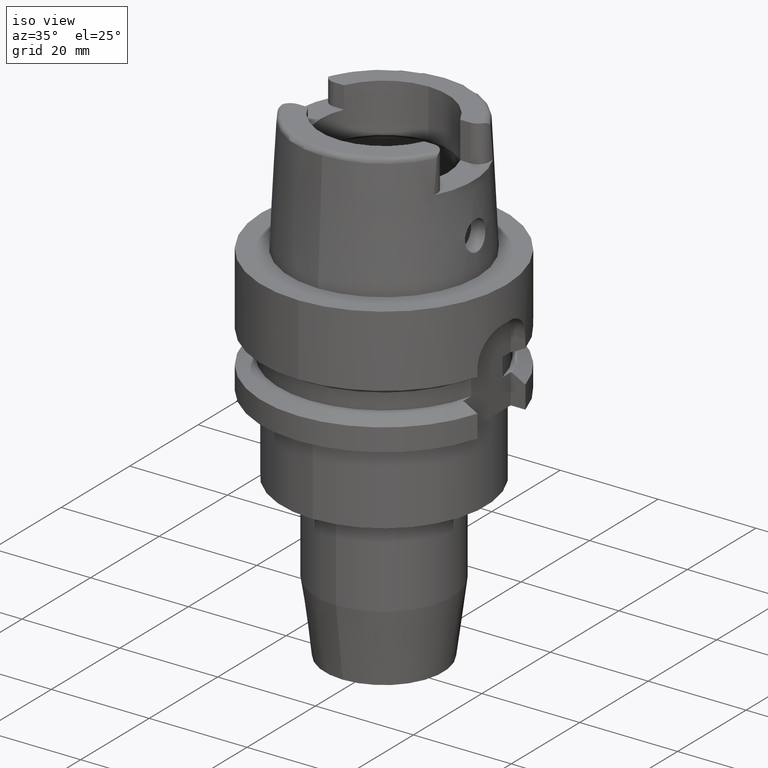
[diagram: clean part render]
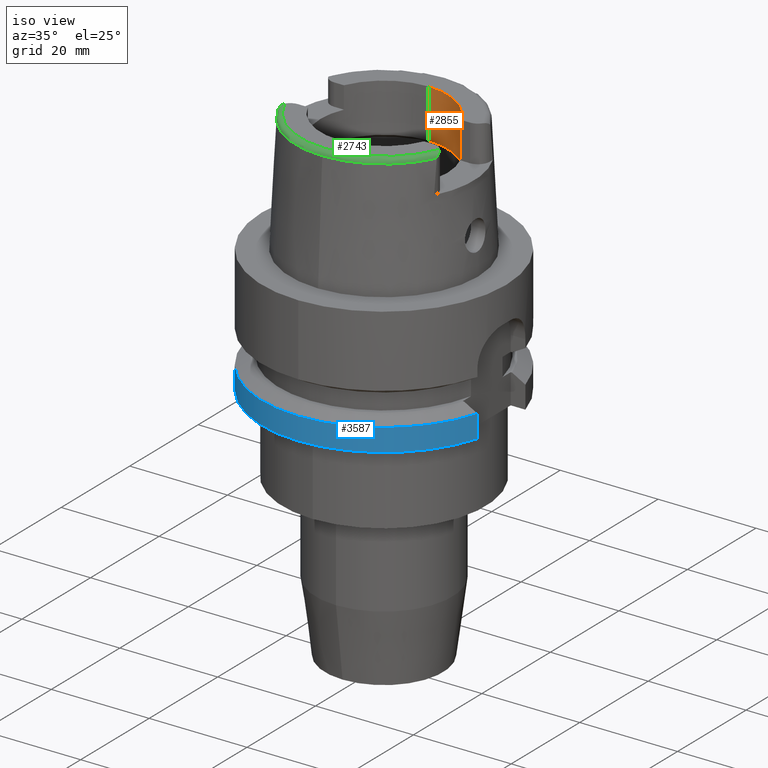
[diagram: same view with three faces highlighted in distinct colors, each labeled with its STEP entity id]
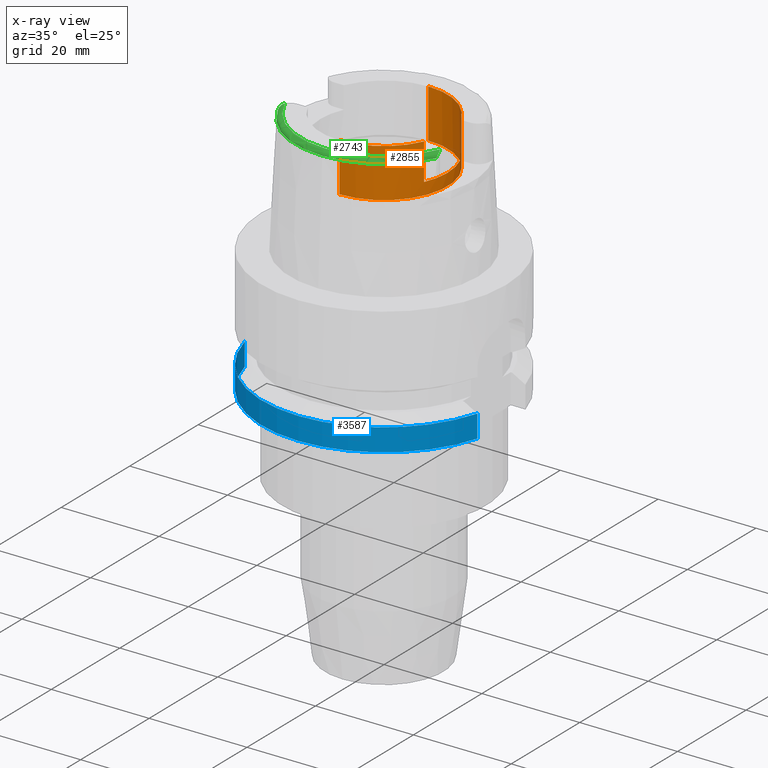
[diagram: x-ray of the same camera — body ghosted, the three highlighted faces saturated]
A machine part, iso view with three faces highlighted in distinct colors.
The next image is the same camera in x-ray (body ghosted, the three faces saturated) — at least one of them is partly hidden behind the body in this view.
Their STEP definitions:

[orange] entity #2855 — the highlighted cylindrical surface (partial cylindrical patch) has radius 13 mm, axis along (0, 0, 1).
#42=CARTESIAN_POINT('',(0.E0,0.E0,2.5E1));
#43=DIRECTION('',(0.E0,0.E0,1.E0));
#44=DIRECTION('',(9.141462211318E-1,4.053846153846E-1,0.E0));
#45=AXIS2_PLACEMENT_3D('',#42,#43,#44);
#72=DIRECTION('',(0.E0,9.659541928455E-14,1.E0));
#73=VECTOR('',#72,1.000397459622E1);
#74=CARTESIAN_POINT('',(0.E0,-1.3E1,1.499602540378E1));
#75=LINE('',#74,#73);
#169=CARTESIAN_POINT('',(0.E0,0.E0,2.5E1));
#170=DIRECTION('',(0.E0,0.E0,1.E0));
#171=DIRECTION('',(0.E0,-1.E0,0.E0));
#172=AXIS2_PLACEMENT_3D('',#169,#170,#171);
#409=CARTESIAN_POINT('',(0.E0,0.E0,1.75E1));
#410=DIRECTION('',(0.E0,0.E0,1.E0));
#411=DIRECTION('',(9.141462211318E-1,-4.053846153846E-1,0.E0));
#412=AXIS2_PLACEMENT_3D('',#409,#410,#411);
#469=DIRECTION('',(0.E0,0.E0,1.E0));
#470=VECTOR('',#469,7.5E0);
#471=CARTESIAN_POINT('',(1.188390087471E1,-5.27E0,1.75E1));
#472=LINE('',#471,#470);
#476=DIRECTION('',(0.E0,-9.659541928455E-14,1.E0));
#477=VECTOR('',#476,1.000397459622E1);
#478=CARTESIAN_POINT('',(0.E0,1.3E1,1.499602540378E1));
#479=LINE('',#478,#477);
#483=DIRECTION('',(0.E0,0.E0,-1.E0));
#484=VECTOR('',#483,7.5E0);
#485=CARTESIAN_POINT('',(1.188390087471E1,5.27E0,2.5E1));
#486=LINE('',#485,#484);
#518=CARTESIAN_POINT('',(0.E0,0.E0,1.499602540378E1));
#519=DIRECTION('',(0.E0,0.E0,-1.E0));
#520=DIRECTION('',(0.E0,1.E0,0.E0));
#521=AXIS2_PLACEMENT_3D('',#518,#519,#520);
#2268=CARTESIAN_POINT('',(1.188390087471E1,5.27E0,2.5E1));
#2269=VERTEX_POINT('',#2268);
#2270=CARTESIAN_POINT('',(0.E0,1.3E1,2.5E1));
#2271=VERTEX_POINT('',#2270);
#2278=CARTESIAN_POINT('',(0.E0,-1.3E1,2.5E1));
#2279=VERTEX_POINT('',#2278);
#2280=CARTESIAN_POINT('',(1.188390087471E1,-5.27E0,2.5E1));
#2281=VERTEX_POINT('',#2280);
#2292=CARTESIAN_POINT('',(0.E0,1.3E1,1.499602540378E1));
#2293=VERTEX_POINT('',#2292);
#2294=CARTESIAN_POINT('',(0.E0,-1.3E1,1.499602540378E1));
#2295=VERTEX_POINT('',#2294);
#2335=CARTESIAN_POINT('',(1.188390087471E1,-5.27E0,1.75E1));
#2336=CARTESIAN_POINT('',(1.188390087471E1,5.27E0,1.75E1));
#2337=VERTEX_POINT('',#2335);
#2338=VERTEX_POINT('',#2336);
#2837=CARTESIAN_POINT('',(0.E0,0.E0,-8.E1));
#2838=DIRECTION('',(0.E0,0.E0,1.E0));
#2839=DIRECTION('',(0.E0,1.E0,0.E0));
#2840=AXIS2_PLACEMENT_3D('',#2837,#2838,#2839);
#2841=CYLINDRICAL_SURFACE('',#2840,1.3E1);
#2842=ORIENTED_EDGE('',*,*,#2819,.F.);
#2844=ORIENTED_EDGE('',*,*,#2843,.T.);
#2845=ORIENTED_EDGE('',*,*,#2696,.F.);
#2846=ORIENTED_EDGE('',*,*,#2642,.F.);
#2848=ORIENTED_EDGE('',*,*,#2847,.F.);
#2849=ORIENTED_EDGE('',*,*,#2638,.T.);
#2850=ORIENTED_EDGE('',*,*,#2607,.F.);
#2852=ORIENTED_EDGE('',*,*,#2851,.T.);
#2853=EDGE_LOOP('',(#2842,#2844,#2845,#2846,#2848,#2849,#2850,#2852));
#2854=FACE_OUTER_BOUND('',#2853,.F.);
#46=CIRCLE('',#45,1.3E1);
#173=CIRCLE('',#172,1.3E1);
#413=CIRCLE('',#412,1.3E1);
#522=CIRCLE('',#521,1.3E1);
#2607=EDGE_CURVE('',#2269,#2271,#46,.T.);
#2638=EDGE_CURVE('',#2293,#2271,#479,.T.);
#2642=EDGE_CURVE('',#2295,#2279,#75,.T.);
#2696=EDGE_CURVE('',#2279,#2281,#173,.T.);
#2819=EDGE_CURVE('',#2337,#2338,#413,.T.);
#2843=EDGE_CURVE('',#2337,#2281,#472,.T.);
#2847=EDGE_CURVE('',#2293,#2295,#522,.T.);
#2851=EDGE_CURVE('',#2269,#2338,#486,.T.);
#2855=ADVANCED_FACE('',(#2854),#2841,.F.);

[blue] entity #3587 — the highlighted cylindrical surface (partial cylindrical patch) has radius 25 mm, axis along (0, 0, 1).
#1180=CARTESIAN_POINT('',(0.E0,0.E0,-2.6E1));
#1181=DIRECTION('',(0.E0,0.E0,1.E0));
#1182=DIRECTION('',(-9.707728879609E-1,-2.4E-1,0.E0));
#1183=AXIS2_PLACEMENT_3D('',#1180,#1181,#1182);
#1188=CARTESIAN_POINT('',(0.E0,0.E0,-2.6E1));
#1189=DIRECTION('',(0.E0,0.E0,1.E0));
#1190=DIRECTION('',(0.E0,-1.E0,0.E0));
#1191=AXIS2_PLACEMENT_3D('',#1188,#1189,#1190);
#1362=DIRECTION('',(3.543665095546E-8,-1.433375642946E-7,1.E0));
#1363=VECTOR('',#1362,4.622494561418E0);
#1364=CARTESIAN_POINT('',(-2.426932219902E1,-6.E0,-2.6E1));
#1365=LINE('',#1364,#1363);
#1369=DIRECTION('',(-1.378023080322E-8,-4.724620309667E-8,-1.E0));
#1370=VECTOR('',#1369,4.622502721852E0);
#1371=CARTESIAN_POINT('',(2.400000006370E1,-6.999999781604E0,
-2.137749727815E1));
#1372=LINE('',#1371,#1370);
#2117=CARTESIAN_POINT('',(0.E0,0.E0,-2.137749907476E1));
#2118=DIRECTION('',(0.E0,0.E0,-1.E0));
#2119=DIRECTION('',(9.6E-1,-2.8E-1,0.E0));
#2120=AXIS2_PLACEMENT_3D('',#2117,#2118,#2119);
#2125=CARTESIAN_POINT('',(0.E0,0.E0,-2.137749907476E1));
#2126=DIRECTION('',(0.E0,0.E0,-1.E0));
#2127=DIRECTION('',(0.E0,-1.E0,0.E0));
#2128=AXIS2_PLACEMENT_3D('',#2125,#2126,#2127);
#2445=CARTESIAN_POINT('',(-2.426932219902E1,-6.E0,-2.6E1));
#2446=VERTEX_POINT('',#2445);
#2447=CARTESIAN_POINT('',(0.E0,-2.5E1,-2.6E1));
#2448=CARTESIAN_POINT('',(2.4E1,-7.E0,-2.6E1));
#2449=VERTEX_POINT('',#2447);
#2450=VERTEX_POINT('',#2448);
#2473=CARTESIAN_POINT('',(-2.426932203522E1,-6.000000662577E0,
-2.137750543858E1));
#2474=VERTEX_POINT('',#2473);
#2475=CARTESIAN_POINT('',(2.4E1,-7.E0,-2.137749907476E1));
#2476=CARTESIAN_POINT('',(0.E0,-2.5E1,-2.137749907476E1));
#2477=VERTEX_POINT('',#2475);
#2478=VERTEX_POINT('',#2476);
#3571=CARTESIAN_POINT('',(0.E0,0.E0,-8.E1));
#3572=DIRECTION('',(0.E0,0.E0,1.E0));
#3573=DIRECTION('',(0.E0,1.E0,0.E0));
#3574=AXIS2_PLACEMENT_3D('',#3571,#3572,#3573);
#3575=CYLINDRICAL_SURFACE('',#3574,2.5E1);
#3577=ORIENTED_EDGE('',*,*,#3576,.T.);
#3579=ORIENTED_EDGE('',*,*,#3578,.F.);
#3581=ORIENTED_EDGE('',*,*,#3580,.F.);
#3582=ORIENTED_EDGE('',*,*,#3561,.T.);
#3583=ORIENTED_EDGE('',*,*,#3452,.F.);
#3584=ORIENTED_EDGE('',*,*,#3450,.F.);
#3585=EDGE_LOOP('',(#3577,#3579,#3581,#3582,#3583,#3584));
#3586=FACE_OUTER_BOUND('',#3585,.F.);
#1184=CIRCLE('',#1183,2.5E1);
#1192=CIRCLE('',#1191,2.5E1);
#2121=CIRCLE('',#2120,2.5E1);
#2129=CIRCLE('',#2128,2.5E1);
#3450=EDGE_CURVE('',#2446,#2449,#1184,.T.);
#3452=EDGE_CURVE('',#2449,#2450,#1192,.T.);
#3561=EDGE_CURVE('',#2477,#2450,#1372,.T.);
#3576=EDGE_CURVE('',#2446,#2474,#1365,.T.);
#3578=EDGE_CURVE('',#2478,#2474,#2129,.T.);
#3580=EDGE_CURVE('',#2477,#2478,#2121,.T.);
#3587=ADVANCED_FACE('',(#3586),#3575,.T.);

[green] entity #2743 — the highlighted toroidal blend (fillet) surface has major radius 17.0488 mm and minor (blend) radius 1 mm.
#185=CARTESIAN_POINT('',(0.E0,0.E0,2.5E1));
#186=DIRECTION('',(0.E0,0.E0,-1.E0));
#187=DIRECTION('',(9.291773910544E-1,-3.696341109170E-1,0.E0));
#188=AXIS2_PLACEMENT_3D('',#185,#186,#187);
#207=CARTESIAN_POINT('',(-1.625999847872E1,-7.831027616017E0,2.404990902230E1));
#208=CARTESIAN_POINT('',(-1.625999847872E1,-7.826521482901E0,2.408901434036E1));
#209=CARTESIAN_POINT('',(-1.626000070993E1,-7.807185720143E0,2.416627508130E1));
#210=CARTESIAN_POINT('',(-1.625999979716E1,-7.745963551391E0,2.428141614822E1));
#211=CARTESIAN_POINT('',(-1.626E1,-7.685384977806E0,2.435408732054E1));
#212=CARTESIAN_POINT('',(-1.626E1,-7.65E0,2.438968791395E1));
#217=CARTESIAN_POINT('',(-1.626E1,-7.65E0,2.438968791395E1));
#218=CARTESIAN_POINT('',(-1.626E1,-7.607179558467E0,2.443276927851E1));
#219=CARTESIAN_POINT('',(-1.625785323455E1,-7.509212896760E0,2.451921954906E1));
#220=CARTESIAN_POINT('',(-1.623983813065E1,-7.318364273252E0,2.465314564860E1));
#221=CARTESIAN_POINT('',(-1.620000666137E1,-7.102975266653E0,2.477536701074E1));
#222=CARTESIAN_POINT('',(-1.613597696150E1,-6.879752532173E0,2.487652679232E1));
#223=CARTESIAN_POINT('',(-1.604974734456E1,-6.662893441400E0,2.495000312429E1));
#224=CARTESIAN_POINT('',(-1.594717886127E1,-6.464216049628E0,2.499212639956E1));
#225=CARTESIAN_POINT('',(-1.587660667514E1,-6.353141058343E0,2.5E1));
#226=CARTESIAN_POINT('',(-1.584131538933E1,-6.301800480794E0,2.5E1));
#231=CARTESIAN_POINT('',(1.584131538933E1,-6.301800480793E0,2.5E1));
#232=CARTESIAN_POINT('',(1.587659315398E1,-6.353121388221E0,2.5E1));
#233=CARTESIAN_POINT('',(1.594714908991E1,-6.464165579630E0,2.499213287235E1));
#234=CARTESIAN_POINT('',(1.604972286594E1,-6.662838809064E0,2.495001879382E1));
#235=CARTESIAN_POINT('',(1.613596350154E1,-6.879710725586E0,2.487654420546E1));
#236=CARTESIAN_POINT('',(1.620000522727E1,-7.102963606274E0,2.477537433383E1));
#237=CARTESIAN_POINT('',(1.623984380490E1,-7.318395608769E0,2.465312803585E1));
#238=CARTESIAN_POINT('',(1.625785634639E1,-7.509270290030E0,2.451917488451E1));
#239=CARTESIAN_POINT('',(1.626E1,-7.607201904867E0,2.443274679594E1));
#240=CARTESIAN_POINT('',(1.626E1,-7.65E0,2.438968791395E1));
#245=CARTESIAN_POINT('',(1.626E1,-7.65E0,2.438968791395E1));
#246=CARTESIAN_POINT('',(1.626E1,-7.685112645996E0,2.435436131178E1));
#247=CARTESIAN_POINT('',(1.626000032115E1,-7.745461943673E0,2.428217307478E1));
#248=CARTESIAN_POINT('',(1.625999887597E1,-7.807240806117E0,2.416631546171E1));
#249=CARTESIAN_POINT('',(1.626000240863E1,-7.826507103492E0,2.408898162375E1));
#250=CARTESIAN_POINT('',(1.626000240863E1,-7.831001011867E0,2.404998239496E1));
#255=CARTESIAN_POINT('',(0.E0,0.E0,2.404993752584E1));
#256=DIRECTION('',(0.E0,0.E0,-1.E0));
#257=DIRECTION('',(9.009559685362E-1,-4.339105239091E-1,0.E0));
#258=AXIS2_PLACEMENT_3D('',#255,#256,#257);
#263=CARTESIAN_POINT('',(0.E0,0.E0,2.404993752584E1));
#264=DIRECTION('',(0.E0,0.E0,-1.E0));
#265=DIRECTION('',(0.E0,-1.E0,0.E0));
#266=AXIS2_PLACEMENT_3D('',#263,#264,#265);
#271=CARTESIAN_POINT('',(0.E0,0.E0,2.404993752584E1));
#272=DIRECTION('',(0.E0,0.E0,-1.E0));
#273=DIRECTION('',(-8.255998758096E-4,-9.999996591924E-1,0.E0));
#274=AXIS2_PLACEMENT_3D('',#271,#272,#273);
#2272=CARTESIAN_POINT('',(-1.584131538933E1,-6.301800480795E0,2.5E1));
#2274=VERTEX_POINT('',#2272);
#2284=CARTESIAN_POINT('',(1.584131538933E1,-6.301800480794E0,2.5E1));
#2285=VERTEX_POINT('',#2284);
#2306=VERTEX_POINT('',#217);
#2316=VERTEX_POINT('',#207);
#2317=VERTEX_POINT('',#240);
#2318=VERTEX_POINT('',#250);
#2319=CARTESIAN_POINT('',(0.E0,-1.804750486565E1,2.404993752584E1));
#2320=VERTEX_POINT('',#2319);
#2321=CARTESIAN_POINT('',(-1.490001777576E-2,-1.804749871493E1,
2.404993752584E1));
#2322=VERTEX_POINT('',#2321);
#2722=CARTESIAN_POINT('',(0.E0,0.E0,2.4E1));
#2723=DIRECTION('',(0.E0,0.E0,1.E0));
#2724=DIRECTION('',(-8.255998758101E-4,-9.999996591924E-1,0.E0));
#2725=AXIS2_PLACEMENT_3D('',#2722,#2723,#2724);
#2726=TOROIDAL_SURFACE('',#2725,1.704875252222E1,1.E0);
#2728=ORIENTED_EDGE('',*,*,#2727,.T.);
#2729=ORIENTED_EDGE('',*,*,#2713,.T.);
#2730=ORIENTED_EDGE('',*,*,#2702,.F.);
#2732=ORIENTED_EDGE('',*,*,#2731,.T.);
#2734=ORIENTED_EDGE('',*,*,#2733,.T.);
#2736=ORIENTED_EDGE('',*,*,#2735,.T.);
#2738=ORIENTED_EDGE('',*,*,#2737,.T.);
#2740=ORIENTED_EDGE('',*,*,#2739,.T.);
#2741=EDGE_LOOP('',(#2728,#2729,#2730,#2732,#2734,#2736,#2738,#2740));
#2742=FACE_OUTER_BOUND('',#2741,.F.);
#189=CIRCLE('',#188,1.704875252222E1);
#213=B_SPLINE_CURVE_WITH_KNOTS('',3,(#207,#208,#209,#210,#211,#212),
.UNSPECIFIED.,.F.,.F.,(4,1,1,4),(0.E0,3.333333333333E-1,6.666666666667E-1,1.E0),
.UNSPECIFIED.);
#227=B_SPLINE_CURVE_WITH_KNOTS('',3,(#217,#218,#219,#220,#221,#222,#223,#224,
#225,#226),.UNSPECIFIED.,.F.,.F.,(4,1,1,1,1,1,1,4),(0.E0,1.428571428571E-1,
2.857142857143E-1,4.285714285714E-1,5.714285714286E-1,7.142857142857E-1,
8.571428571429E-1,1.E0),.UNSPECIFIED.);
#241=B_SPLINE_CURVE_WITH_KNOTS('',3,(#231,#232,#233,#234,#235,#236,#237,#238,
#239,#240),.UNSPECIFIED.,.F.,.F.,(4,1,1,1,1,1,1,4),(0.E0,1.428571428571E-1,
2.857142857143E-1,4.285714285714E-1,5.714285714286E-1,7.142857142857E-1,
8.571428571429E-1,1.E0),.UNSPECIFIED.);
#251=B_SPLINE_CURVE_WITH_KNOTS('',3,(#245,#246,#247,#248,#249,#250),
.UNSPECIFIED.,.F.,.F.,(4,1,1,4),(0.E0,3.333333333333E-1,6.666666666667E-1,1.E0),
.UNSPECIFIED.);
#259=CIRCLE('',#258,1.804750486565E1);
#267=CIRCLE('',#266,1.804750486565E1);
#275=CIRCLE('',#274,1.804750486565E1);
#2702=EDGE_CURVE('',#2285,#2274,#189,.T.);
#2713=EDGE_CURVE('',#2306,#2274,#227,.T.);
#2727=EDGE_CURVE('',#2316,#2306,#213,.T.);
#2731=EDGE_CURVE('',#2285,#2317,#241,.T.);
#2733=EDGE_CURVE('',#2317,#2318,#251,.T.);
#2735=EDGE_CURVE('',#2318,#2320,#259,.T.);
#2737=EDGE_CURVE('',#2320,#2322,#267,.T.);
#2739=EDGE_CURVE('',#2322,#2316,#275,.T.);
#2743=ADVANCED_FACE('',(#2742),#2726,.T.);